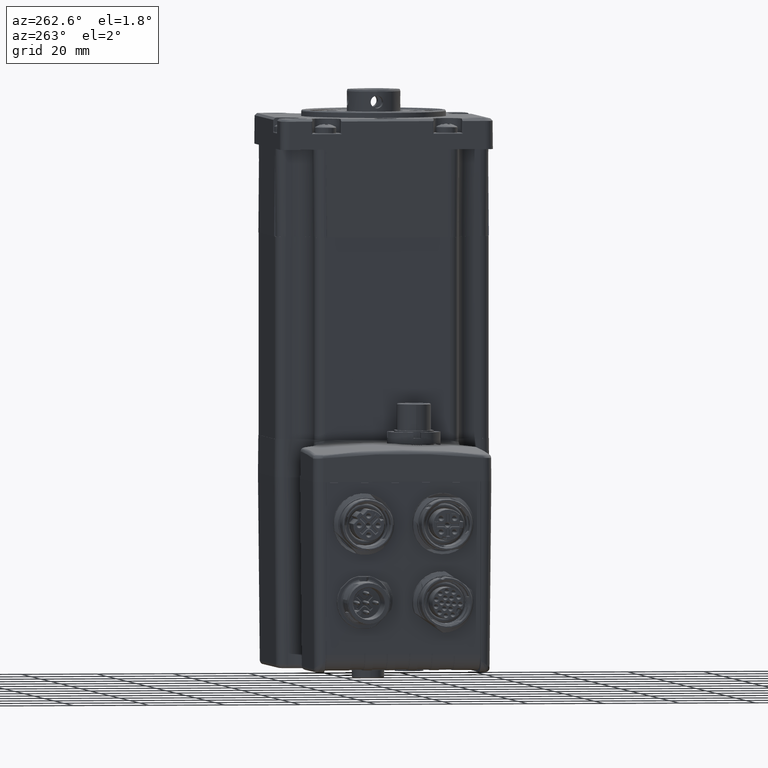
[diagram: clean part render]
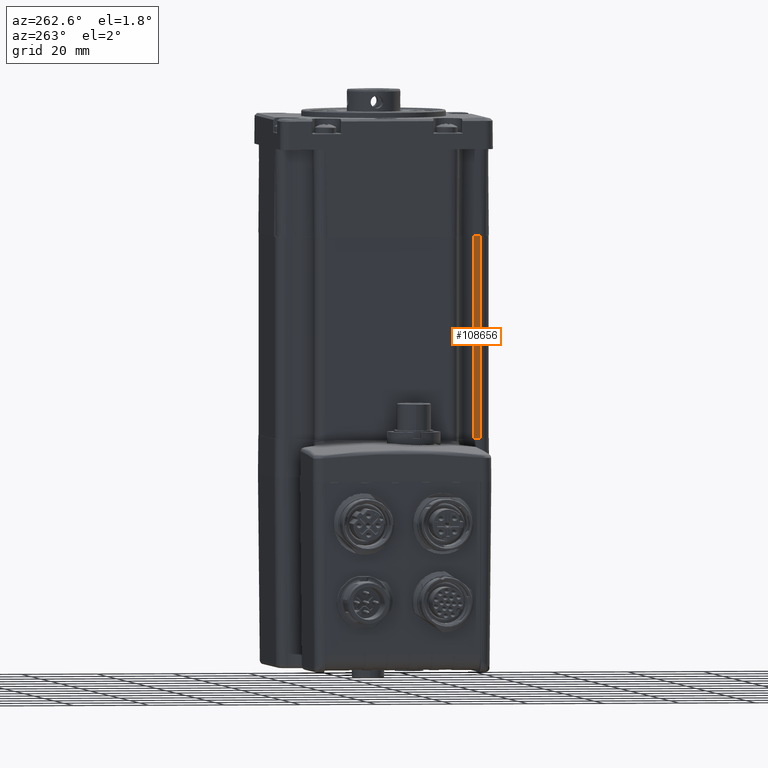
[diagram: same view with one face highlighted and labeled with its STEP entity id]
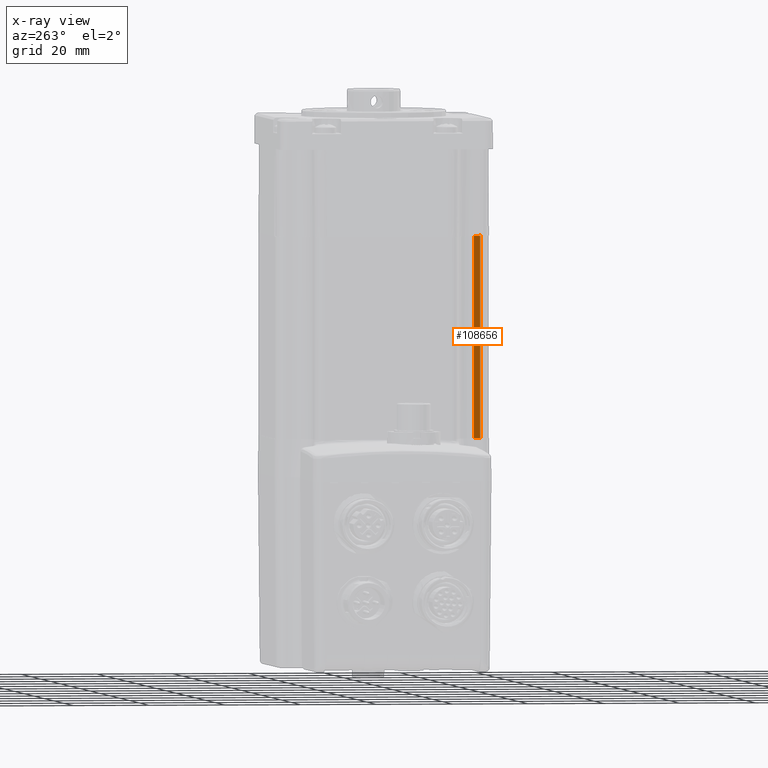
[diagram: x-ray of the same camera — body ghosted, the highlighted face saturated]
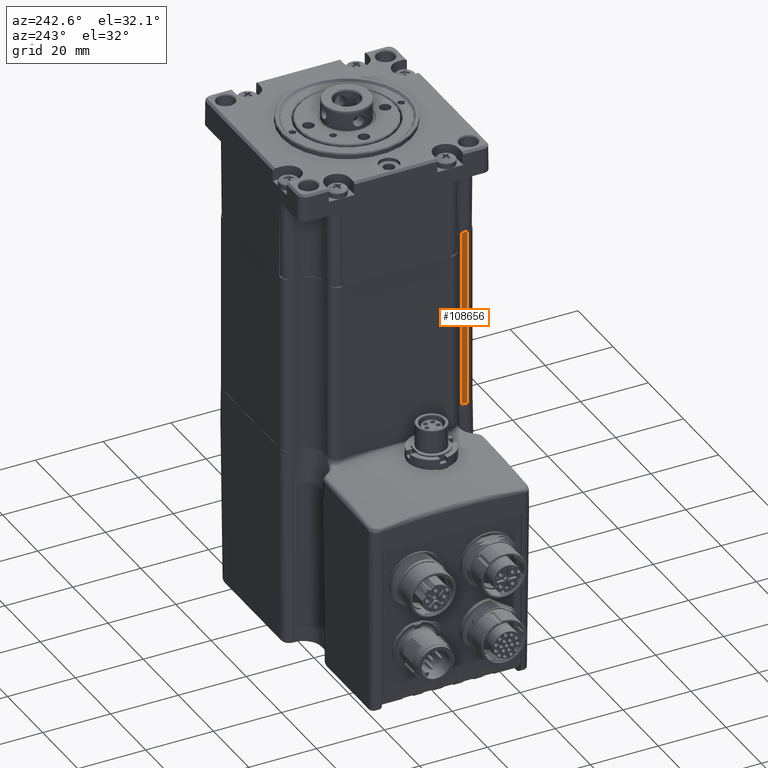
[diagram: same view with one face highlighted and labeled with its STEP entity id]
A machine part, auxiliary view. The second image highlights one B-rep face of the part: STEP entity #108656.
The next image is the same camera in x-ray: the body ghosted, the highlighted face saturated — about 0% of this face is hidden behind the body in this view.
A second angle (auxiliary view) of the same face is appended — the face is thin or edge-on in the first view.
In plain terms, the highlighted planar face has unit normal (1, 0, 0).
Its self-contained STEP definition (entity closure, byte-faithful):
#1676 = VERTEX_POINT ( 'NONE', #64535 ) ;
#2597 = ORIENTED_EDGE ( 'NONE', *, *, #99421, .T. ) ;
#2846 = EDGE_LOOP ( 'NONE', ( #23699, #81629, #59073, #44618, #66627, #2597 ) ) ;
#7985 = CARTESIAN_POINT ( 'NONE',  ( -18.99892613958972021, -25.69994570905607034, 9.999999999999612754 ) ) ;
#14130 = CARTESIAN_POINT ( 'NONE',  ( -18.99964102040621583, -25.61981494232694700, 9.999999999999786837 ) ) ;
#14472 = VECTOR ( 'NONE', #78761, 1000.000000000000000 ) ;
#15092 = B_SPLINE_CURVE_WITH_KNOTS ( 'NONE', 3,
 ( #91077, #23654, #32220, #101369 ),
 .UNSPECIFIED., .F., .F.,
 ( 4, 4 ),
 ( 0.0000000000000000000, 1.000000000000000000 ),
 .UNSPECIFIED. ) ;
#15939 = VERTEX_POINT ( 'NONE', #50174 ) ;
#17969 = PLANE ( 'NONE',  #54516 ) ;
#18239 = CARTESIAN_POINT ( 'NONE',  ( -19.00009088569424520, -24.00000074003705564, -43.00000083336040291 ) ) ;
#21389 = EDGE_CURVE ( 'NONE', #107701, #15939, #122882, .T. ) ;
#23654 = CARTESIAN_POINT ( 'NONE',  ( -19.00000000000000355, -24.59533712645206194, -43.00000000000002132 ) ) ;
#23699 = ORIENTED_EDGE ( 'NONE', *, *, #38239, .T. ) ;
#24369 = CARTESIAN_POINT ( 'NONE',  ( -18.99999999999998934, -25.69999999999999929, 9.999999999999237943 ) ) ;
#25948 = EDGE_CURVE ( 'NONE', #100042, #107701, #68107, .T. ) ;
#27318 = VERTEX_POINT ( 'NONE', #37652 ) ;
#32220 = CARTESIAN_POINT ( 'NONE',  ( -18.99999999999999645, -25.14766856322603061, -43.00000000000002132 ) ) ;
#34047 = FACE_OUTER_BOUND ( 'NONE', #2846, .T. ) ;
#34934 = EDGE_CURVE ( 'NONE', #27318, #15939, #15092, .T. ) ;
#34955 = DIRECTION ( 'NONE',  ( 0.0000000000000000000, 0.0000000000000000000, -1.000000000000000000 ) ) ;
#37652 = CARTESIAN_POINT ( 'NONE',  ( -18.99999999999999645, -24.04300568967809326, -43.00000000000002132 ) ) ;
#38239 = EDGE_CURVE ( 'NONE', #1676, #27318, #119722, .T. ) ;
#38298 = CARTESIAN_POINT ( 'NONE',  ( -19.00000000000001066, -24.02867045978539551, -43.00000000000002132 ) ) ;
#41191 = VERTEX_POINT ( 'NONE', #98251 ) ;
#44618 = ORIENTED_EDGE ( 'NONE', *, *, #25948, .F. ) ;
#50174 = CARTESIAN_POINT ( 'NONE',  ( -18.99999999999999645, -25.69999999999999929, -43.00000000000002132 ) ) ;
#53826 = CARTESIAN_POINT ( 'NONE',  ( -18.99928204081214034, -25.64651321581268562, 9.999999999999968026 ) ) ;
#54516 = AXIS2_PLACEMENT_3D ( 'NONE', #24369, #93070, #95228 ) ;
#56280 = VECTOR ( 'NONE', #34955, 1000.000000000000000 ) ;
#59073 = ORIENTED_EDGE ( 'NONE', *, *, #21389, .F. ) ;
#61689 = B_SPLINE_CURVE_WITH_KNOTS ( 'NONE', 3,
 ( #65161, #83892, #123231, #112587 ),
 .UNSPECIFIED., .F., .F.,
 ( 4, 4 ),
 ( 0.1103416264823321169, 1.000000000000000000 ),
 .UNSPECIFIED. ) ;
#64535 = CARTESIAN_POINT ( 'NONE',  ( -19.00009088569424520, -24.00000074003705564, -43.00000083336040291 ) ) ;
#65161 = CARTESIAN_POINT ( 'NONE',  ( -18.99964102040603464, -24.00000000000000000, 9.999999999999602096 ) ) ;
#66627 = ORIENTED_EDGE ( 'NONE', *, *, #71798, .F. ) ;
#68107 = B_SPLINE_CURVE_WITH_KNOTS ( 'NONE', 3,
 ( #14130, #53826, #73021, #122106 ),
 .UNSPECIFIED., .F., .F.,
 ( 4, 4 ),
 ( 0.0000000000000000000, 0.02217646441898799350 ),
 .UNSPECIFIED. ) ;
#70711 = CARTESIAN_POINT ( 'NONE',  ( -18.99999999999999289, -25.69999999999999929, 9.999999999999237943 ) ) ;
#71798 = EDGE_CURVE ( 'NONE', #41191, #100042, #61689, .T. ) ;
#73021 = CARTESIAN_POINT ( 'NONE',  ( -18.99881698050320011, -25.67321148864325409, 9.999999999999968026 ) ) ;
#74632 = LINE ( 'NONE', #85223, #56280 ) ;
#78761 = DIRECTION ( 'NONE',  ( 0.0000000000000000000, 0.0000000000000000000, -1.000000000000000000 ) ) ;
#81629 = ORIENTED_EDGE ( 'NONE', *, *, #34934, .T. ) ;
#83892 = CARTESIAN_POINT ( 'NONE',  ( -18.99928204081207284, -24.53993831410898352, 9.999999999999968026 ) ) ;
#85223 = CARTESIAN_POINT ( 'NONE',  ( -19.00000000000001066, -24.00000000000000000, 9.999999999999237943 ) ) ;
#86886 = CARTESIAN_POINT ( 'NONE',  ( -19.00000000000001066, -24.01433522989269775, -43.00000000000002132 ) ) ;
#91077 = CARTESIAN_POINT ( 'NONE',  ( -18.99999999999999645, -24.04300568967809326, -43.00000000000002132 ) ) ;
#93070 = DIRECTION ( 'NONE',  ( 1.000000000000000000, 1.326553246335205416E-14, 0.0000000000000000000 ) ) ;
#95228 = DIRECTION ( 'NONE',  ( -1.326553246335205416E-14, 1.000000000000000000, 0.0000000000000000000 ) ) ;
#98251 = CARTESIAN_POINT ( 'NONE',  ( -18.99964102040603464, -24.00000000000000000, 9.999999999999602096 ) ) ;
#99421 = EDGE_CURVE ( 'NONE', #41191, #1676, #74632, .T. ) ;
#100042 = VERTEX_POINT ( 'NONE', #121044 ) ;
#101369 = CARTESIAN_POINT ( 'NONE',  ( -18.99999999999999645, -25.69999999999999929, -43.00000000000002132 ) ) ;
#107701 = VERTEX_POINT ( 'NONE', #7985 ) ;
#108656 = ADVANCED_FACE ( 'NONE', ( #34047 ), #17969, .F. ) ;
#112587 = CARTESIAN_POINT ( 'NONE',  ( -18.99964102040621583, -25.61981494232694700, 9.999999999999786837 ) ) ;
#115572 = CARTESIAN_POINT ( 'NONE',  ( -18.99999999999999645, -24.04300568967809326, -43.00000000000002132 ) ) ;
#119722 = B_SPLINE_CURVE_WITH_KNOTS ( 'NONE', 3,
 ( #18239, #86886, #38298, #115572 ),
 .UNSPECIFIED., .F., .F.,
 ( 4, 4 ),
 ( 0.0000000000000000000, 1.000000000000000000 ),
 .UNSPECIFIED. ) ;
#121044 = CARTESIAN_POINT ( 'NONE',  ( -18.99964102040621583, -25.61981494232694700, 9.999999999999786837 ) ) ;
#122106 = CARTESIAN_POINT ( 'NONE',  ( -18.99892613958972021, -25.69994570905607034, 9.999999999999612754 ) ) ;
#122882 = LINE ( 'NONE', #70711, #14472 ) ;
#123231 = CARTESIAN_POINT ( 'NONE',  ( -18.99928204081206573, -25.07987662821796349, 9.999999999999968026 ) ) ;